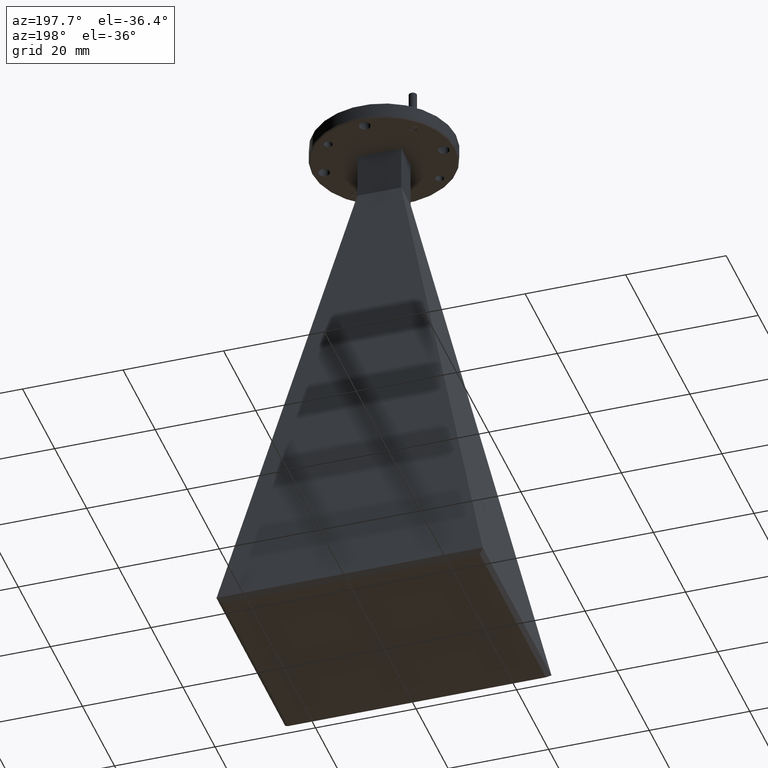
[diagram: clean part render]
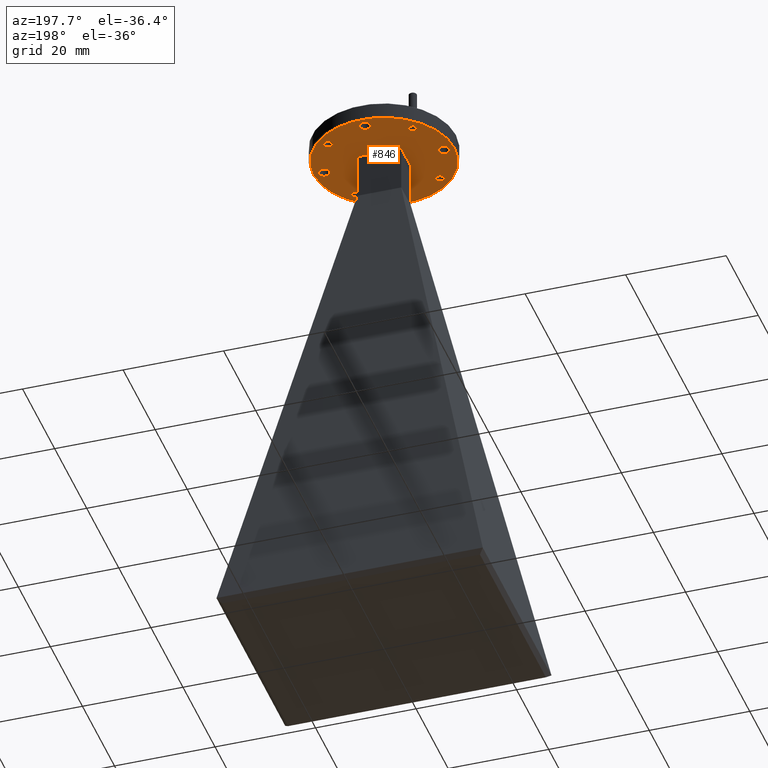
[diagram: same view with one face highlighted and labeled with its STEP entity id]
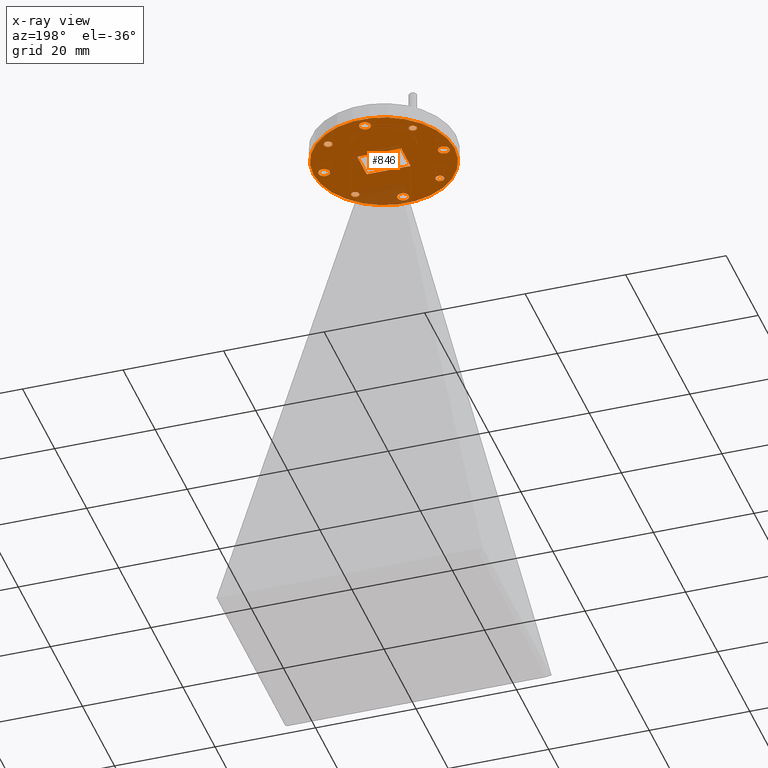
[diagram: x-ray of the same camera — body ghosted, the highlighted face saturated]
A machine part, auxiliary view. The second image highlights one B-rep face of the part: STEP entity #846.
The next image is the same camera in x-ray: the body ghosted, the highlighted face saturated — about 10% of this face is hidden behind the body in this view.
In plain terms, the highlighted planar face has unit normal (0, 0, 1).
Its self-contained STEP definition (entity closure, byte-faithful):
#14 = AXIS2_PLACEMENT_3D ( 'NONE', #584, #567, #777 ) ;
#16 = CIRCLE ( 'NONE', #1508, 0.04449999999999972000 ) ;
#18 = FACE_BOUND ( 'NONE', #961, .T. ) ;
#26 = DIRECTION ( 'NONE',  ( 1.000000000000000000, 0.0000000000000000000, 0.0000000000000000000 ) ) ;
#49 = DIRECTION ( 'NONE',  ( 1.000000000000000000, 0.0000000000000000000, 0.0000000000000000000 ) ) ;
#68 = VERTEX_POINT ( 'NONE', #1091 ) ;
#72 = PLANE ( 'NONE',  #2120 ) ;
#94 = CARTESIAN_POINT ( 'NONE',  ( -0.4687500000000000000, 0.0000000000000000000, -0.1600000000000000000 ) ) ;
#103 = CIRCLE ( 'NONE', #614, 0.03074999999999997200 ) ;
#104 = CARTESIAN_POINT ( 'NONE',  ( -0.04449999999999972000, -0.4687500000000000000, -0.1600000000000000000 ) ) ;
#111 = VECTOR ( 'NONE', #1418, 39.37007874015748100 ) ;
#123 = EDGE_CURVE ( 'NONE', #1691, #2340, #2019, .T. ) ;
#149 = VERTEX_POINT ( 'NONE', #904 ) ;
#156 = ORIENTED_EDGE ( 'NONE', *, *, #1831, .T. ) ;
#193 = DIRECTION ( 'NONE',  ( 0.0000000000000000000, 0.0000000000000000000, 1.000000000000000000 ) ) ;
#207 = ORIENTED_EDGE ( 'NONE', *, *, #2352, .T. ) ;
#208 = CARTESIAN_POINT ( 'NONE',  ( 0.2979563036811935200, 0.3314563036811950000, -0.1600000000000000000 ) ) ;
#209 = EDGE_CURVE ( 'NONE', #451, #868, #581, .T. ) ;
#217 = FACE_BOUND ( 'NONE', #480, .T. ) ;
#228 = DIRECTION ( 'NONE',  ( 1.000000000000000000, 0.0000000000000000000, -0.0000000000000000000 ) ) ;
#250 = ORIENTED_EDGE ( 'NONE', *, *, #1988, .T. ) ;
#257 = DIRECTION ( 'NONE',  ( 0.0000000000000000000, 0.0000000000000000000, 1.000000000000000000 ) ) ;
#263 = CIRCLE ( 'NONE', #519, 0.03349999999999999500 ) ;
#287 = ORIENTED_EDGE ( 'NONE', *, *, #209, .T. ) ;
#298 = AXIS2_PLACEMENT_3D ( 'NONE', #1016, #2299, #1369 ) ;
#354 = FACE_BOUND ( 'NONE', #1312, .T. ) ;
#369 = DIRECTION ( 'NONE',  ( 1.000000000000000000, 0.0000000000000000000, 0.0000000000000000000 ) ) ;
#377 = VECTOR ( 'NONE', #2286, 39.37007874015748100 ) ;
#403 = AXIS2_PLACEMENT_3D ( 'NONE', #907, #1072, #1635 ) ;
#406 = CIRCLE ( 'NONE', #502, 0.04449999999999975500 ) ;
#431 = CARTESIAN_POINT ( 'NONE',  ( 0.3314563036811961600, -0.3314563036811921100, -0.1600000000000000000 ) ) ;
#444 = DIRECTION ( 'NONE',  ( 0.0000000000000000000, 0.0000000000000000000, 1.000000000000000000 ) ) ;
#449 = ORIENTED_EDGE ( 'NONE', *, *, #1675, .F. ) ;
#451 = VERTEX_POINT ( 'NONE', #851 ) ;
#468 = VERTEX_POINT ( 'NONE', #2145 ) ;
#480 = EDGE_LOOP ( 'NONE', ( #156, #737 ) ) ;
#496 = VERTEX_POINT ( 'NONE', #1585 ) ;
#502 = AXIS2_PLACEMENT_3D ( 'NONE', #1583, #1953, #857 ) ;
#507 = VERTEX_POINT ( 'NONE', #1397 ) ;
#511 = DIRECTION ( 'NONE',  ( 0.0000000000000000000, 0.0000000000000000000, 1.000000000000000000 ) ) ;
#519 = AXIS2_PLACEMENT_3D ( 'NONE', #2006, #1289, #1454 ) ;
#527 = CARTESIAN_POINT ( 'NONE',  ( 0.0000000000000000000, -0.4687500000000000000, -0.1600000000000000000 ) ) ;
#536 = AXIS2_PLACEMENT_3D ( 'NONE', #527, #193, #1837 ) ;
#567 = DIRECTION ( 'NONE',  ( 0.0000000000000000000, 0.0000000000000000000, 1.000000000000000000 ) ) ;
#574 = LINE ( 'NONE', #2142, #111 ) ;
#581 = CIRCLE ( 'NONE', #1709, 0.5525000000000006600 ) ;
#584 = CARTESIAN_POINT ( 'NONE',  ( -0.3314563036811935000, -0.3314563036811948900, -0.1600000000000000000 ) ) ;
#598 = DIRECTION ( 'NONE',  ( 1.000000000000000000, 0.0000000000000000000, 0.0000000000000000000 ) ) ;
#614 = AXIS2_PLACEMENT_3D ( 'NONE', #617, #1539, #790 ) ;
#617 = CARTESIAN_POINT ( 'NONE',  ( -0.3314563036811960500, 0.3314563036811922800, -0.1600000000000000000 ) ) ;
#629 = AXIS2_PLACEMENT_3D ( 'NONE', #1055, #2338, #1240 ) ;
#666 = CARTESIAN_POINT ( 'NONE',  ( 0.0000000000000000000, 0.4687500000000000000, -0.1600000000000000000 ) ) ;
#694 = FACE_BOUND ( 'NONE', #2167, .T. ) ;
#721 = CIRCLE ( 'NONE', #2046, 0.04449999999999975500 ) ;
#732 = EDGE_CURVE ( 'NONE', #2195, #1363, #1497, .T. ) ;
#735 = VERTEX_POINT ( 'NONE', #1688 ) ;
#737 = ORIENTED_EDGE ( 'NONE', *, *, #789, .T. ) ;
#760 = EDGE_CURVE ( 'NONE', #788, #2025, #1679, .T. ) ;
#777 = DIRECTION ( 'NONE',  ( 1.000000000000000000, 0.0000000000000000000, 0.0000000000000000000 ) ) ;
#779 = AXIS2_PLACEMENT_3D ( 'NONE', #1460, #1650, #369 ) ;
#782 = EDGE_LOOP ( 'NONE', ( #1420, #2221 ) ) ;
#788 = VERTEX_POINT ( 'NONE', #1328 ) ;
#789 = EDGE_CURVE ( 'NONE', #2327, #507, #1440, .T. ) ;
#790 = DIRECTION ( 'NONE',  ( 1.000000000000000000, 0.0000000000000000000, 0.0000000000000000000 ) ) ;
#806 = FACE_BOUND ( 'NONE', #1637, .T. ) ;
#814 = ORIENTED_EDGE ( 'NONE', *, *, #1769, .T. ) ;
#835 = FACE_OUTER_BOUND ( 'NONE', #2140, .T. ) ;
#846 = ADVANCED_FACE ( 'NONE', ( #835, #354, #806, #18, #2047, #1003, #217, #1844, #694, #1031 ), #72, .F. ) ;
#851 = CARTESIAN_POINT ( 'NONE',  ( 0.5525000000000006600, 0.0000000000000000000, -0.1600000000000000000 ) ) ;
#857 = DIRECTION ( 'NONE',  ( 1.000000000000000000, 0.0000000000000000000, 0.0000000000000000000 ) ) ;
#861 = LINE ( 'NONE', #1197, #377 ) ;
#868 = VERTEX_POINT ( 'NONE', #1519 ) ;
#878 = EDGE_LOOP ( 'NONE', ( #1219, #449, #1958, #2137 ) ) ;
#894 = CIRCLE ( 'NONE', #536, 0.04449999999999972000 ) ;
#904 = CARTESIAN_POINT ( 'NONE',  ( 0.1720000000000000100, 0.1160000000000000200, -0.1600000000000000000 ) ) ;
#907 = CARTESIAN_POINT ( 'NONE',  ( 0.3314563036811935000, 0.3314563036811950000, -0.1600000000000000000 ) ) ;
#961 = EDGE_LOOP ( 'NONE', ( #1544, #2146 ) ) ;
#975 = CARTESIAN_POINT ( 'NONE',  ( -0.3622063036811959400, 0.3314563036811922800, -0.1600000000000000000 ) ) ;
#1003 = FACE_BOUND ( 'NONE', #1417, .T. ) ;
#1005 = AXIS2_PLACEMENT_3D ( 'NONE', #1841, #2024, #26 ) ;
#1016 = CARTESIAN_POINT ( 'NONE',  ( 0.0000000000000000000, 0.4687500000000000000, -0.1600000000000000000 ) ) ;
#1024 = AXIS2_PLACEMENT_3D ( 'NONE', #94, #444, #1906 ) ;
#1031 = FACE_BOUND ( 'NONE', #878, .T. ) ;
#1052 = CARTESIAN_POINT ( 'NONE',  ( 0.0000000000000000000, 0.0000000000000000000, -0.1600000000000000000 ) ) ;
#1055 = CARTESIAN_POINT ( 'NONE',  ( -0.3314563036811960500, 0.3314563036811922800, -0.1600000000000000000 ) ) ;
#1065 = EDGE_CURVE ( 'NONE', #149, #68, #574, .T. ) ;
#1072 = DIRECTION ( 'NONE',  ( 0.0000000000000000000, 0.0000000000000000000, 1.000000000000000000 ) ) ;
#1091 = CARTESIAN_POINT ( 'NONE',  ( 0.1719999999999999300, -0.1159999999999999400, -0.1600000000000000000 ) ) ;
#1094 = EDGE_CURVE ( 'NONE', #868, #451, #1677, .T. ) ;
#1118 = DIRECTION ( 'NONE',  ( -0.0000000000000000000, -0.0000000000000000000, -1.000000000000000000 ) ) ;
#1127 = AXIS2_PLACEMENT_3D ( 'NONE', #2255, #1890, #49 ) ;
#1134 = CARTESIAN_POINT ( 'NONE',  ( 0.0000000000000000000, 0.0000000000000000000, -0.1600000000000000000 ) ) ;
#1144 = DIRECTION ( 'NONE',  ( 0.0000000000000000000, 0.0000000000000000000, 1.000000000000000000 ) ) ;
#1149 = DIRECTION ( 'NONE',  ( 0.0000000000000000000, 0.0000000000000000000, 1.000000000000000000 ) ) ;
#1180 = CARTESIAN_POINT ( 'NONE',  ( -0.2979563036811935200, -0.3314563036811948900, -0.1600000000000000000 ) ) ;
#1197 = CARTESIAN_POINT ( 'NONE',  ( 0.1720000000000000100, 0.1160000000000000200, -0.1600000000000000000 ) ) ;
#1200 = EDGE_CURVE ( 'NONE', #1363, #2195, #894, .T. ) ;
#1211 = DIRECTION ( 'NONE',  ( 1.000000000000000000, 0.0000000000000000000, 0.0000000000000000000 ) ) ;
#1219 = ORIENTED_EDGE ( 'NONE', *, *, #760, .F. ) ;
#1240 = DIRECTION ( 'NONE',  ( 1.000000000000000000, 0.0000000000000000000, 0.0000000000000000000 ) ) ;
#1289 = DIRECTION ( 'NONE',  ( 0.0000000000000000000, 0.0000000000000000000, 1.000000000000000000 ) ) ;
#1291 = DIRECTION ( 'NONE',  ( 1.471900858655314500E-016, 1.000000000000000000, -0.0000000000000000000 ) ) ;
#1303 = VERTEX_POINT ( 'NONE', #208 ) ;
#1312 = EDGE_LOOP ( 'NONE', ( #2304, #1711 ) ) ;
#1314 = EDGE_CURVE ( 'NONE', #2031, #496, #1320, .T. ) ;
#1318 = CARTESIAN_POINT ( 'NONE',  ( 0.0000000000000000000, 0.0000000000000000000, -0.1600000000000000000 ) ) ;
#1320 = CIRCLE ( 'NONE', #298, 0.04449999999999972000 ) ;
#1327 = VERTEX_POINT ( 'NONE', #1576 ) ;
#1328 = CARTESIAN_POINT ( 'NONE',  ( -0.1720000000000000700, -0.1159999999999999400, -0.1600000000000000000 ) ) ;
#1329 = DIRECTION ( 'NONE',  ( 1.000000000000000000, 0.0000000000000000000, 0.0000000000000000000 ) ) ;
#1343 = EDGE_CURVE ( 'NONE', #2025, #149, #861, .T. ) ;
#1359 = EDGE_CURVE ( 'NONE', #735, #1327, #1948, .T. ) ;
#1363 = VERTEX_POINT ( 'NONE', #104 ) ;
#1369 = DIRECTION ( 'NONE',  ( 1.000000000000000000, 0.0000000000000000000, 0.0000000000000000000 ) ) ;
#1385 = CARTESIAN_POINT ( 'NONE',  ( 0.4687500000000000000, 0.0000000000000000000, -0.1600000000000000000 ) ) ;
#1397 = CARTESIAN_POINT ( 'NONE',  ( 0.5132499999999997600, 0.0000000000000000000, -0.1600000000000000000 ) ) ;
#1410 = CARTESIAN_POINT ( 'NONE',  ( -0.04449999999999972000, 0.4687500000000000000, -0.1600000000000000000 ) ) ;
#1417 = EDGE_LOOP ( 'NONE', ( #250, #2059 ) ) ;
#1418 = DIRECTION ( 'NONE',  ( -2.943801717310629400E-016, -1.000000000000000000, 0.0000000000000000000 ) ) ;
#1420 = ORIENTED_EDGE ( 'NONE', *, *, #732, .T. ) ;
#1435 = CARTESIAN_POINT ( 'NONE',  ( 0.1719999999999999300, -0.1159999999999999400, -0.1600000000000000000 ) ) ;
#1440 = CIRCLE ( 'NONE', #1127, 0.04449999999999975500 ) ;
#1454 = DIRECTION ( 'NONE',  ( 1.000000000000000000, 0.0000000000000000000, 0.0000000000000000000 ) ) ;
#1460 = CARTESIAN_POINT ( 'NONE',  ( -0.3314563036811935000, -0.3314563036811948900, -0.1600000000000000000 ) ) ;
#1465 = CARTESIAN_POINT ( 'NONE',  ( -0.1720000000000000400, 0.1160000000000000300, -0.1600000000000000000 ) ) ;
#1493 = CIRCLE ( 'NONE', #2171, 0.03074999999999993700 ) ;
#1497 = CIRCLE ( 'NONE', #1005, 0.04449999999999972000 ) ;
#1501 = ORIENTED_EDGE ( 'NONE', *, *, #123, .T. ) ;
#1508 = AXIS2_PLACEMENT_3D ( 'NONE', #666, #511, #2158 ) ;
#1518 = EDGE_CURVE ( 'NONE', #1327, #735, #406, .T. ) ;
#1519 = CARTESIAN_POINT ( 'NONE',  ( -0.5525000000000006600, 6.827405905246498100E-017, -0.1600000000000000000 ) ) ;
#1522 = AXIS2_PLACEMENT_3D ( 'NONE', #1052, #2326, #1211 ) ;
#1539 = DIRECTION ( 'NONE',  ( 0.0000000000000000000, 0.0000000000000000000, 1.000000000000000000 ) ) ;
#1540 = ORIENTED_EDGE ( 'NONE', *, *, #1094, .T. ) ;
#1544 = ORIENTED_EDGE ( 'NONE', *, *, #2324, .T. ) ;
#1547 = CIRCLE ( 'NONE', #14, 0.03349999999999996000 ) ;
#1576 = CARTESIAN_POINT ( 'NONE',  ( -0.4242500000000002400, 0.0000000000000000000, -0.1600000000000000000 ) ) ;
#1578 = EDGE_CURVE ( 'NONE', #1768, #1838, #2292, .T. ) ;
#1581 = CARTESIAN_POINT ( 'NONE',  ( 0.3622063036811961100, -0.3314563036811921100, -0.1600000000000000000 ) ) ;
#1583 = CARTESIAN_POINT ( 'NONE',  ( -0.4687500000000000000, 0.0000000000000000000, -0.1600000000000000000 ) ) ;
#1585 = CARTESIAN_POINT ( 'NONE',  ( 0.04449999999999972000, 0.4687500000000000000, -0.1600000000000000000 ) ) ;
#1608 = CIRCLE ( 'NONE', #2328, 0.03074999999999993700 ) ;
#1623 = VERTEX_POINT ( 'NONE', #1824 ) ;
#1630 = ORIENTED_EDGE ( 'NONE', *, *, #2206, .T. ) ;
#1635 = DIRECTION ( 'NONE',  ( 1.000000000000000000, 0.0000000000000000000, 0.0000000000000000000 ) ) ;
#1637 = EDGE_LOOP ( 'NONE', ( #1630, #1501 ) ) ;
#1638 = CARTESIAN_POINT ( 'NONE',  ( -0.3649563036811934700, -0.3314563036811948900, -0.1600000000000000000 ) ) ;
#1650 = DIRECTION ( 'NONE',  ( 0.0000000000000000000, 0.0000000000000000000, 1.000000000000000000 ) ) ;
#1675 = EDGE_CURVE ( 'NONE', #68, #788, #2185, .T. ) ;
#1677 = CIRCLE ( 'NONE', #1522, 0.5525000000000006600 ) ;
#1679 = LINE ( 'NONE', #1465, #2243 ) ;
#1688 = CARTESIAN_POINT ( 'NONE',  ( -0.5132499999999997600, 5.449678256205684300E-018, -0.1600000000000000000 ) ) ;
#1691 = VERTEX_POINT ( 'NONE', #1638 ) ;
#1709 = AXIS2_PLACEMENT_3D ( 'NONE', #1318, #1118, #598 ) ;
#1711 = ORIENTED_EDGE ( 'NONE', *, *, #2130, .T. ) ;
#1755 = CARTESIAN_POINT ( 'NONE',  ( -0.3007063036811960500, 0.3314563036811922800, -0.1600000000000000000 ) ) ;
#1768 = VERTEX_POINT ( 'NONE', #975 ) ;
#1769 = EDGE_CURVE ( 'NONE', #468, #1829, #1493, .T. ) ;
#1778 = ORIENTED_EDGE ( 'NONE', *, *, #1518, .T. ) ;
#1824 = CARTESIAN_POINT ( 'NONE',  ( 0.3649563036811934700, 0.3314563036811950000, -0.1600000000000000000 ) ) ;
#1829 = VERTEX_POINT ( 'NONE', #1581 ) ;
#1831 = EDGE_CURVE ( 'NONE', #507, #2327, #721, .T. ) ;
#1837 = DIRECTION ( 'NONE',  ( 1.000000000000000000, 0.0000000000000000000, 0.0000000000000000000 ) ) ;
#1838 = VERTEX_POINT ( 'NONE', #1755 ) ;
#1841 = CARTESIAN_POINT ( 'NONE',  ( 0.0000000000000000000, -0.4687500000000000000, -0.1600000000000000000 ) ) ;
#1844 = FACE_BOUND ( 'NONE', #782, .T. ) ;
#1890 = DIRECTION ( 'NONE',  ( 0.0000000000000000000, 0.0000000000000000000, 1.000000000000000000 ) ) ;
#1895 = CARTESIAN_POINT ( 'NONE',  ( 0.4242500000000002400, 5.449678256205684300E-018, -0.1600000000000000000 ) ) ;
#1906 = DIRECTION ( 'NONE',  ( 1.000000000000000000, 0.0000000000000000000, 0.0000000000000000000 ) ) ;
#1911 = DIRECTION ( 'NONE',  ( 1.000000000000000000, 0.0000000000000000000, 0.0000000000000000000 ) ) ;
#1948 = CIRCLE ( 'NONE', #1024, 0.04449999999999975500 ) ;
#1953 = DIRECTION ( 'NONE',  ( 0.0000000000000000000, 0.0000000000000000000, 1.000000000000000000 ) ) ;
#1958 = ORIENTED_EDGE ( 'NONE', *, *, #1065, .F. ) ;
#1980 = VECTOR ( 'NONE', #2353, 39.37007874015748100 ) ;
#1988 = EDGE_CURVE ( 'NONE', #496, #2031, #16, .T. ) ;
#1989 = EDGE_LOOP ( 'NONE', ( #207, #814 ) ) ;
#2006 = CARTESIAN_POINT ( 'NONE',  ( 0.3314563036811935000, 0.3314563036811950000, -0.1600000000000000000 ) ) ;
#2019 = CIRCLE ( 'NONE', #779, 0.03349999999999996000 ) ;
#2024 = DIRECTION ( 'NONE',  ( 0.0000000000000000000, 0.0000000000000000000, 1.000000000000000000 ) ) ;
#2025 = VERTEX_POINT ( 'NONE', #2311 ) ;
#2030 = CARTESIAN_POINT ( 'NONE',  ( 0.04449999999999972000, -0.4687500000000000000, -0.1600000000000000000 ) ) ;
#2031 = VERTEX_POINT ( 'NONE', #1410 ) ;
#2046 = AXIS2_PLACEMENT_3D ( 'NONE', #1385, #2122, #2097 ) ;
#2047 = FACE_BOUND ( 'NONE', #1989, .T. ) ;
#2059 = ORIENTED_EDGE ( 'NONE', *, *, #1314, .T. ) ;
#2062 = CARTESIAN_POINT ( 'NONE',  ( 0.3314563036811961600, -0.3314563036811921100, -0.1600000000000000000 ) ) ;
#2097 = DIRECTION ( 'NONE',  ( 1.000000000000000000, 0.0000000000000000000, 0.0000000000000000000 ) ) ;
#2118 = EDGE_CURVE ( 'NONE', #1623, #1303, #2154, .T. ) ;
#2120 = AXIS2_PLACEMENT_3D ( 'NONE', #1134, #257, #228 ) ;
#2122 = DIRECTION ( 'NONE',  ( 0.0000000000000000000, 0.0000000000000000000, 1.000000000000000000 ) ) ;
#2130 = EDGE_CURVE ( 'NONE', #1303, #1623, #263, .T. ) ;
#2137 = ORIENTED_EDGE ( 'NONE', *, *, #1343, .F. ) ;
#2140 = EDGE_LOOP ( 'NONE', ( #287, #1540 ) ) ;
#2142 = CARTESIAN_POINT ( 'NONE',  ( 0.1720000000000000100, 0.1160000000000000200, -0.1600000000000000000 ) ) ;
#2145 = CARTESIAN_POINT ( 'NONE',  ( 0.3007063036811962200, -0.3314563036811921100, -0.1600000000000000000 ) ) ;
#2146 = ORIENTED_EDGE ( 'NONE', *, *, #1578, .T. ) ;
#2154 = CIRCLE ( 'NONE', #403, 0.03349999999999999500 ) ;
#2158 = DIRECTION ( 'NONE',  ( 1.000000000000000000, 0.0000000000000000000, 0.0000000000000000000 ) ) ;
#2167 = EDGE_LOOP ( 'NONE', ( #1778, #2281 ) ) ;
#2171 = AXIS2_PLACEMENT_3D ( 'NONE', #2062, #1144, #1329 ) ;
#2185 = LINE ( 'NONE', #1435, #1980 ) ;
#2195 = VERTEX_POINT ( 'NONE', #2030 ) ;
#2206 = EDGE_CURVE ( 'NONE', #2340, #1691, #1547, .T. ) ;
#2221 = ORIENTED_EDGE ( 'NONE', *, *, #1200, .T. ) ;
#2243 = VECTOR ( 'NONE', #1291, 39.37007874015748100 ) ;
#2255 = CARTESIAN_POINT ( 'NONE',  ( 0.4687500000000000000, 0.0000000000000000000, -0.1600000000000000000 ) ) ;
#2281 = ORIENTED_EDGE ( 'NONE', *, *, #1359, .T. ) ;
#2286 = DIRECTION ( 'NONE',  ( 1.000000000000000000, -4.963386616395826200E-017, -0.0000000000000000000 ) ) ;
#2292 = CIRCLE ( 'NONE', #629, 0.03074999999999997200 ) ;
#2299 = DIRECTION ( 'NONE',  ( 0.0000000000000000000, 0.0000000000000000000, 1.000000000000000000 ) ) ;
#2304 = ORIENTED_EDGE ( 'NONE', *, *, #2118, .T. ) ;
#2311 = CARTESIAN_POINT ( 'NONE',  ( -0.1720000000000000400, 0.1160000000000000600, -0.1600000000000000000 ) ) ;
#2324 = EDGE_CURVE ( 'NONE', #1838, #1768, #103, .T. ) ;
#2326 = DIRECTION ( 'NONE',  ( -0.0000000000000000000, -0.0000000000000000000, -1.000000000000000000 ) ) ;
#2327 = VERTEX_POINT ( 'NONE', #1895 ) ;
#2328 = AXIS2_PLACEMENT_3D ( 'NONE', #431, #1149, #1911 ) ;
#2338 = DIRECTION ( 'NONE',  ( 0.0000000000000000000, 0.0000000000000000000, 1.000000000000000000 ) ) ;
#2340 = VERTEX_POINT ( 'NONE', #1180 ) ;
#2352 = EDGE_CURVE ( 'NONE', #1829, #468, #1608, .T. ) ;
#2353 = DIRECTION ( 'NONE',  ( -1.000000000000000000, 0.0000000000000000000, 0.0000000000000000000 ) ) ;